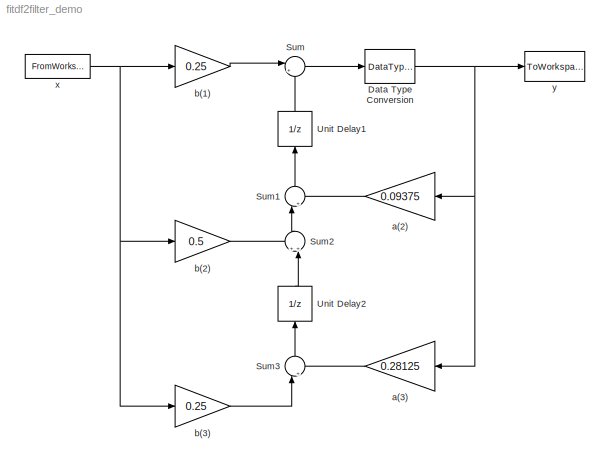
MODEL fitdf2filter_demo
KIND model
CONFIG InitFcn = ; 
CONFIG StartFcn = ; 
CONFIG StopFcn = ; 
BLOCK [DataTypeConversion] Data Type Conversion
  LockScale = on
  OutDataType = sfix(8)
  OutDataTypeMode = Specify via dialog
  OutScaling = 2^-6
  RndMeth = Nearest
BLOCK [Sum] Sum
  IconShape = round
  InputSameDT = off
  Inputs = |++
  OutDataType = sfix(8)
  OutDataTypeMode = Inherit via internal rule
  OutScaling = 2^-6
  Ports = [2, 1]
  RndMeth = Nearest
BLOCK [Sum] Sum1
  IconShape = round
  InputSameDT = off
  Inputs = |+-
  OutDataType = sfix(8)
  OutDataTypeMode = Inherit via internal rule
  OutScaling = 2^-6
  Ports = [2, 1]
  RndMeth = Nearest
BLOCK [Sum] Sum2
  IconShape = round
  InputSameDT = off
  Inputs = ++|
  OutDataTypeMode = Inherit via internal rule
  Ports = [2, 1]
  RndMeth = Nearest
BLOCK [Sum] Sum3
  IconShape = round
  InputSameDT = off
  Inputs = |+-
  OutDataType = sfix(8)
  OutDataTypeMode = Inherit via internal rule
  OutScaling = 2^-6
  Ports = [2, 1]
  RndMeth = Nearest
BLOCK [UnitDelay] Unit Delay1
BLOCK [UnitDelay] Unit Delay2
BLOCK [Gain] a(2)
  Gain = 0.09375
  OutDataTypeMode = Inherit via internal rule
  ParameterDataType = sfix(8)
  ParameterDataTypeMode = Specify via dialog
  ParameterScaling = 2^-6
  ParameterScalingMode = Use specified scaling
  RndMeth = Nearest
BLOCK [Gain] a(3)
  Gain = 0.28125
  OutDataTypeMode = Inherit via internal rule
  ParameterDataType = sfix(8)
  ParameterDataTypeMode = Specify via dialog
  ParameterScaling = 2^-6
  ParameterScalingMode = Use specified scaling
  RndMeth = Nearest
BLOCK [Gain] b(1)
  Gain = 0.25
  OutDataTypeMode = Inherit via internal rule
  ParameterDataType = sfix(8)
  ParameterDataTypeMode = Specify via dialog
  ParameterScaling = 2^-6
  ParameterScalingMode = Use specified scaling
  RndMeth = Nearest
BLOCK [Gain] b(2)
  Gain = 0.5
  OutDataTypeMode = Inherit via internal rule
  ParameterDataType = sfix(8)
  ParameterDataTypeMode = Specify via dialog
  ParameterScaling = 2^-6
  ParameterScalingMode = Use specified scaling
  RndMeth = Nearest
BLOCK [Gain] b(3)
  Gain = 0.25
  OutDataTypeMode = Inherit via internal rule
  ParameterDataType = sfix(8)
  ParameterDataTypeMode = Specify via dialog
  ParameterScaling = 2^-6
  ParameterScalingMode = Use specified scaling
  RndMeth = Nearest
BLOCK [FromWorkspace] x
  Interpolate = off
  OutputAfterFinalValue = Setting to zero
  SampleTime = 0
  VariableName = x_sim
BLOCK [ToWorkspace] y
  FixptAsFi = on
  MaxDataPoints = inf
  SampleTime = -1
  SaveFormat = Array
  VariableName = y_sim
NET Data Type Conversion:1 -> a(2):1, a(3):1, y:1
LINE Sum1:1 -> Unit Delay1:1
LINE Sum2:1 -> Sum1:1
LINE Sum3:1 -> Unit Delay2:1
LINE Sum:1 -> Data Type Conversion:1
LINE Unit Delay1:1 -> Sum:2
LINE Unit Delay2:1 -> Sum2:2
LINE a(2):1 -> Sum1:2
LINE a(3):1 -> Sum3:2
LINE b(1):1 -> Sum:1
LINE b(2):1 -> Sum2:1
LINE b(3):1 -> Sum3:1
NET x:1 -> b(1):1, b(2):1, b(3):1
note: NET lines group one-source signal fan-out (src -> all destinations, sorted); 1:1 wires keep LINE
